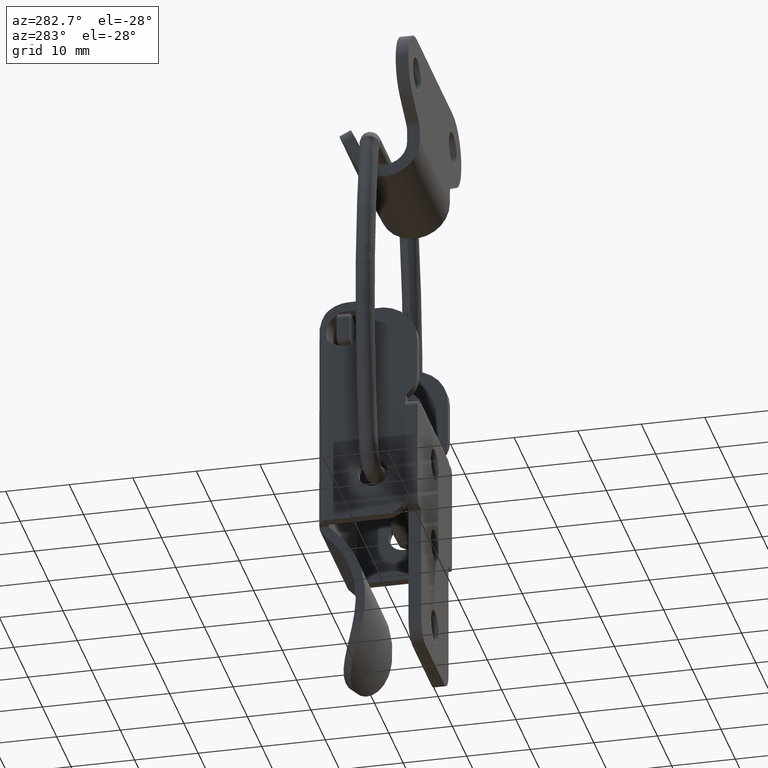
[diagram: clean part render]
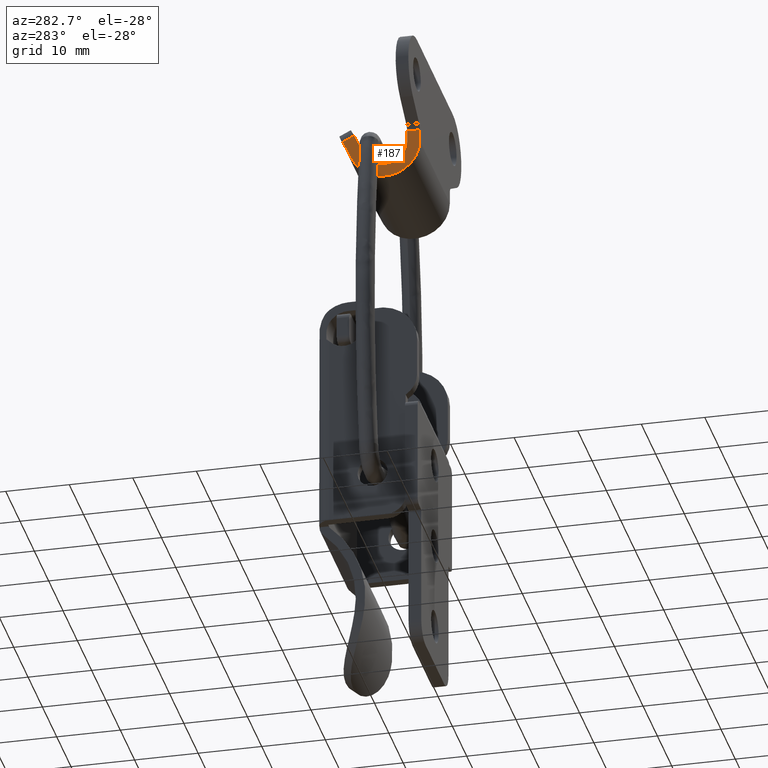
[diagram: same view with one face highlighted and labeled with its STEP entity id]
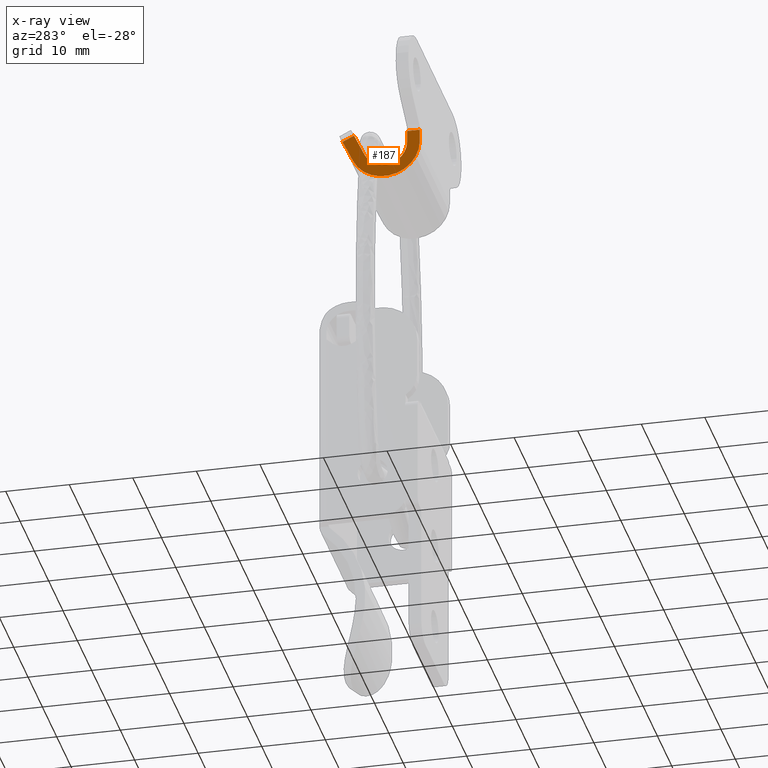
[diagram: x-ray of the same camera — body ghosted, the highlighted face saturated]
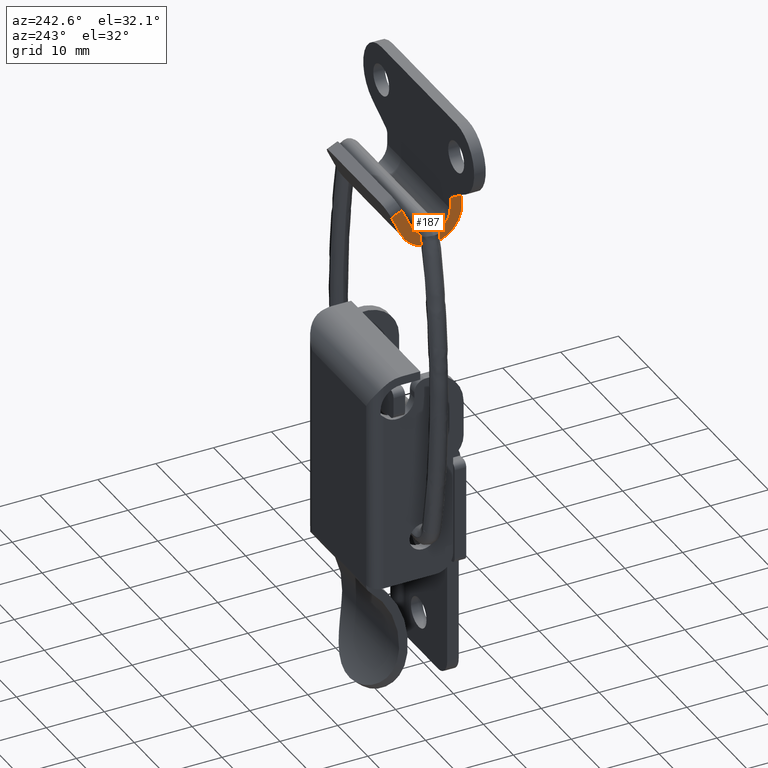
[diagram: same view with one face highlighted and labeled with its STEP entity id]
A machine part, auxiliary view. The second image highlights one B-rep face of the part: STEP entity #187.
The next image is the same camera in x-ray: the body ghosted, the highlighted face saturated — about 0% of this face is hidden behind the body in this view.
A second angle (auxiliary view) of the same face is appended — the face is thin or edge-on in the first view.
In plain terms, the highlighted planar face has unit normal (1, 0, 0).
Its self-contained STEP definition (entity closure, byte-faithful):
#187=ADVANCED_FACE('',(#339),#338,.F.);
#338=PLANE('',#1770);
#339=FACE_OUTER_BOUND('',#1771,.T.);
#1767=CARTESIAN_POINT('',(-2.00000000000E+00,-1.13630049790E+01,-1.76702319668E+01));
#1768=DIRECTION('',(-1.00000000000E+00,0.00000000000E+00,0.00000000000E+00));
#1769=DIRECTION('',(0.00000000000E+00,0.00000000000E+00,1.00000000000E+00));
#1770=AXIS2_PLACEMENT_3D('',#1767,#1768,#1769);
#1771=EDGE_LOOP('',(#2750,#2751,#2752,#2753,#2754,#2755,#2756,#2757));
#2750=ORIENTED_EDGE('',*,*,#3526,.T.);
#2751=ORIENTED_EDGE('',*,*,#3527,.T.);
#2752=ORIENTED_EDGE('',*,*,#3528,.T.);
#2753=ORIENTED_EDGE('',*,*,#3529,.T.);
#2754=ORIENTED_EDGE('',*,*,#3530,.F.);
#2755=ORIENTED_EDGE('',*,*,#3523,.T.);
#2756=ORIENTED_EDGE('',*,*,#3531,.T.);
#2757=ORIENTED_EDGE('',*,*,#3532,.T.);
#3523=EDGE_CURVE('',#3918,#3911,#3919,.T.);
#3526=EDGE_CURVE('',#3938,#3939,#3940,.T.);
#3527=EDGE_CURVE('',#3939,#3946,#3947,.T.);
#3528=EDGE_CURVE('',#3946,#3953,#3954,.T.);
#3529=EDGE_CURVE('',#3953,#3960,#3961,.T.);
#3530=EDGE_CURVE('',#3918,#3960,#3967,.T.);
#3531=EDGE_CURVE('',#3911,#3973,#3974,.T.);
#3532=EDGE_CURVE('',#3973,#3938,#3980,.T.);
#3911=VERTEX_POINT('',#6493);
#3918=VERTEX_POINT('',#6498);
#3919=LINE('',#6499,#6500);
#3938=VERTEX_POINT('',#6510);
#3939=VERTEX_POINT('',#6511);
#3940=LINE('',#6512,#6513);
#3946=VERTEX_POINT('',#6515);
#3947=LINE('',#6516,#6517);
#3953=VERTEX_POINT('',#6519);
#3954=LINE('',#6520,#6521);
#3960=VERTEX_POINT('',#6523);
#3961=CIRCLE('',#6527,5.50000000000E+00);
#3967=LINE('',#6528,#6529);
#3973=VERTEX_POINT('',#6531);
#3974=LINE('',#6532,#6533);
#3980=CIRCLE('',#6538,3.50000000000E+00);
#6493=CARTESIAN_POINT('',(-2.00000000000E+00,0.00000000000E+00,-8.58578643763E+00));
#6498=CARTESIAN_POINT('',(-2.00000000000E+00,2.00000000000E+00,-8.58578643763E+00));
#6499=CARTESIAN_POINT('',(-2.00000000000E+00,2.00000000000E+00,-8.58578643763E+00));
#6500=VECTOR('',#6501,2.00000000000E+00);
#6501=DIRECTION('',(0.00000000000E+00,-1.00000000000E+00,0.00000000000E+00));
#6510=CARTESIAN_POINT('',(-2.00000000000E+00,-6.66774486787E+00,-1.19892995095E+01));
#6511=CARTESIAN_POINT('',(-2.00000000000E+00,-8.34937285438E+00,-8.41035646861E+00));
#6512=CARTESIAN_POINT('',(-2.00000000000E+00,-6.66774486787E+00,-1.19892995095E+01));
#6513=VECTOR('',#6514,3.95432749967E+00);
#6514=DIRECTION('',(0.00000000000E+00,-4.25262699321E-01,9.05069962250E-01));
#6515=CARTESIAN_POINT('',(-2.00000000000E+00,-1.01481863446E+01,-9.28977639715E+00));
#6516=CARTESIAN_POINT('',(-2.00000000000E+00,-8.34937285438E+00,-8.41035646861E+00));
#6517=VECTOR('',#6518,2.00227605070E+00);
#6518=DIRECTION('',(0.00000000000E+00,-8.98384360919E-01,-4.39210132005E-01));
#6519=CARTESIAN_POINT('',(-2.00000000000E+00,-8.47633952164E+00,-1.28418078779E+01));
#6520=CARTESIAN_POINT('',(-2.00000000000E+00,-1.01481863446E+01,-9.28977639715E+00));
#6521=VECTOR('',#6522,3.92581194651E+00);
#6522=DIRECTION('',(0.00000000000E+00,4.25860139434E-01,-9.04789003935E-01));
#6523=CARTESIAN_POINT('',(-2.00000000000E+00,2.00000000000E+00,-1.04995771110E+01));
#6524=CARTESIAN_POINT('',(-2.00000000000E+00,-3.50000000000E+00,-1.04995771110E+01));
#6525=DIRECTION('',(1.00000000000E+00,-0.00000000000E+00,0.00000000000E+00));
#6526=DIRECTION('',(0.00000000000E+00,1.00000000000E+00,1.83690953073E-16));
#6527=AXIS2_PLACEMENT_3D('',#6524,#6525,#6526);
#6528=CARTESIAN_POINT('',(-2.00000000000E+00,2.00000000000E+00,-8.58578643763E+00));
#6529=VECTOR('',#6530,1.91379067335E+00);
#6530=DIRECTION('',(0.00000000000E+00,0.00000000000E+00,-1.00000000000E+00));
#6531=CARTESIAN_POINT('',(-2.00000000000E+00,0.00000000000E+00,-1.05008800618E+01));
#6532=CARTESIAN_POINT('',(-2.00000000000E+00,0.00000000000E+00,-8.58578643763E+00));
#6533=VECTOR('',#6534,1.91509362421E+00);
#6534=DIRECTION('',(0.00000000000E+00,0.00000000000E+00,-1.00000000000E+00));
#6535=CARTESIAN_POINT('',(-2.00000000000E+00,-3.50000000000E+00,-1.05008800618E+01));
#6536=DIRECTION('',(-1.00000000000E+00,0.00000000000E+00,0.00000000000E+00));
#6537=DIRECTION('',(0.00000000000E+00,1.00000000000E+00,1.83690953073E-16));
#6538=AXIS2_PLACEMENT_3D('',#6535,#6536,#6537);